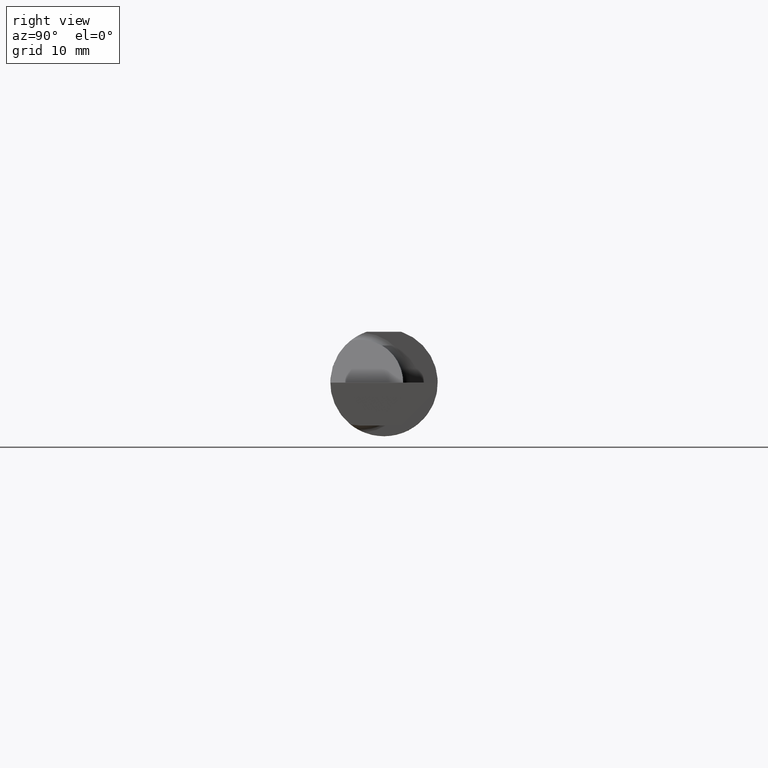
[diagram: clean part render]
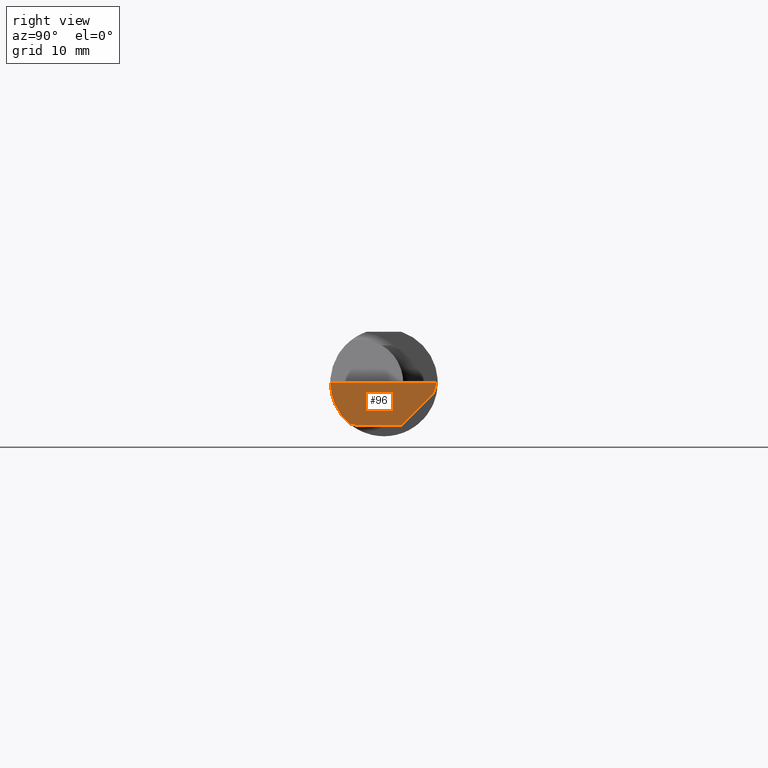
[diagram: same view with one face highlighted and labeled with its STEP entity id]
A machine part, right view. The second image highlights one B-rep face of the part: STEP entity #96.
In plain terms, the highlighted planar face has unit normal (-0.999, 0.0349, 0.0262).
Its self-contained STEP definition (entity closure, byte-faithful):
#8 = CARTESIAN_POINT ( 'NONE',  ( 2.486311922989707490, -0.09477667630339421667, -0.1499999999999999944 ) ) ;
#12 = CARTESIAN_POINT ( 'NONE',  ( 2.485628535317038867, -0.1172600179964007061, -0.1461167706989303094 ) ) ;
#13 = EDGE_CURVE ( 'NONE', #715, #169, #250, .T. ) ;
#18 = CARTESIAN_POINT ( 'NONE',  ( 2.500000000000000000, 0.1846500000000000363, 0.000000000000000000 ) ) ;
#40 = CARTESIAN_POINT ( 'NONE',  ( 2.491727426418679059, 0.06030305154314920951, -0.1499999999999999944 ) ) ;
#54 = EDGE_CURVE ( 'NONE', #397, #848, #803, .T. ) ;
#64 = VECTOR ( 'NONE', #626, 39.37007874015748854 ) ;
#65 = ORIENTED_EDGE ( 'NONE', *, *, #418, .T. ) ;
#74 = CARTESIAN_POINT ( 'NONE',  ( 2.498202922559297878, 0.1662457073591344092, -0.04405734418401514862 ) ) ;
#89 = CARTESIAN_POINT ( 'NONE',  ( 2.499745275690704371, 0.1824457755323927455, -0.006783905356193825967 ) ) ;
#96 = ADVANCED_FACE ( 'NONE', ( #338 ), #827, .F. ) ;
#127 = CARTESIAN_POINT ( 'NONE',  ( 2.486710951318955587, -0.08334999999999997966, -0.1499999999999999944 ) ) ;
#157 = LINE ( 'NONE', #89, #527 ) ;
#169 = VERTEX_POINT ( 'NONE', #609 ) ;
#174 = ORIENTED_EDGE ( 'NONE', *, *, #268, .F. ) ;
#232 = CARTESIAN_POINT ( 'NONE',  ( 2.485494735025390867, -0.1873500000000000443, -0.05781030015605120170 ) ) ;
#243 = CARTESIAN_POINT ( 'NONE',  ( 2.485002117657001186, -0.1623470442677541481, -0.1099340280425338545 ) ) ;
#250 =( BOUNDED_CURVE ( )  B_SPLINE_CURVE ( 3, ( #736, #243, #232, #1042 ),
 .UNSPECIFIED., .F., .F. ) 
 B_SPLINE_CURVE_WITH_KNOTS ( ( 4, 4 ),
 ( 6.032366188922103412, 6.926893589830550368 ),
 .UNSPECIFIED. ) 
 CURVE ( )  GEOMETRIC_REPRESENTATION_ITEM ( )  RATIONAL_B_SPLINE_CURVE ( ( 1.000000000000000000, 0.9344226172588803170, 0.9344226172588803170, 1.000000000000000000 ) ) 
 REPRESENTATION_ITEM ( '' )  );
#268 = EDGE_CURVE ( 'NONE', #848, #1003, #861, .T. ) ;
#311 = DIRECTION ( 'NONE',  ( -0.03489949670249478664, -0.9993908270190959842, 0.000000000000000000 ) ) ;
#325 = CARTESIAN_POINT ( 'NONE',  ( 2.485949549028435790, -0.1061291577212409298, -0.1486999626928446061 ) ) ;
#338 = FACE_OUTER_BOUND ( 'NONE', #460, .T. ) ;
#366 = CARTESIAN_POINT ( 'NONE',  ( 2.500000000000000000, 0.1846500000000000363, 0.000000000000000000 ) ) ;
#372 = CARTESIAN_POINT ( 'NONE',  ( 2.493549313964080305, 0.1124750847462631514, -0.1499999999999999944 ) ) ;
#375 = EDGE_CURVE ( 'NONE', #550, #397, #157, .T. ) ;
#379 =( BOUNDED_CURVE ( )  B_SPLINE_CURVE ( 3, ( #12, #325, #8, #645 ),
 .UNSPECIFIED., .F., .F. ) 
 B_SPLINE_CURVE_WITH_KNOTS ( ( 4, 4 ),
 ( 0.6990500090944880007, 0.9270880441439324215 ),
 .UNSPECIFIED. ) 
 CURVE ( )  GEOMETRIC_REPRESENTATION_ITEM ( )  RATIONAL_B_SPLINE_CURVE ( ( 1.000000000000000000, 0.9956712472009929815, 0.9956712472009929815, 1.000000000000000000 ) ) 
 REPRESENTATION_ITEM ( '' )  );
#392 = DIRECTION ( 'NONE',  ( -0.04317993108638582683, -0.7064472710512009757, -0.7064472710511987552 ) ) ;
#397 = VERTEX_POINT ( 'NONE', #981 ) ;
#418 = EDGE_CURVE ( 'NONE', #550, #169, #738, .T. ) ;
#447 = ORIENTED_EDGE ( 'NONE', *, *, #13, .F. ) ;
#460 = EDGE_LOOP ( 'NONE', ( #560, #174, #655, #766, #65, #447 ) ) ;
#496 = CARTESIAN_POINT ( 'NONE',  ( 2.485628535317038867, -0.1172600179964007061, -0.1461167706989303094 ) ) ;
#506 = DIRECTION ( 'NONE',  ( -0.03489949670249477970, -0.9993908270190959842, 0.000000000000000000 ) ) ;
#527 = VECTOR ( 'NONE', #807, 39.37007874015748143 ) ;
#550 = VERTEX_POINT ( 'NONE', #366 ) ;
#560 = ORIENTED_EDGE ( 'NONE', *, *, #739, .T. ) ;
#577 = CARTESIAN_POINT ( 'NONE',  ( 2.500000000000000000, 0.1846500000000000363, 0.000000000000000000 ) ) ;
#607 = VECTOR ( 'NONE', #392, 39.37007874015748143 ) ;
#609 = CARTESIAN_POINT ( 'NONE',  ( 2.487009473749072441, -0.1873499999999999055, 0.000000000000000000 ) ) ;
#626 = DIRECTION ( 'NONE',  ( -0.03489949670249477970, -0.9993908270190959842, 0.000000000000000000 ) ) ;
#645 = CARTESIAN_POINT ( 'NONE',  ( 2.486710951318955587, -0.08334999999999997966, -0.1499999999999999944 ) ) ;
#655 = ORIENTED_EDGE ( 'NONE', *, *, #54, .F. ) ;
#715 = VERTEX_POINT ( 'NONE', #496 ) ;
#736 = CARTESIAN_POINT ( 'NONE',  ( 2.485628535317038867, -0.1172600179964007061, -0.1461167706989303094 ) ) ;
#738 = LINE ( 'NONE', #577, #773 ) ;
#739 = EDGE_CURVE ( 'NONE', #715, #1003, #379, .T. ) ;
#759 = DIRECTION ( 'NONE',  ( -0.9990483607430193924, 0.03488753751660920999, 0.02617694830787320806 ) ) ;
#766 = ORIENTED_EDGE ( 'NONE', *, *, #375, .F. ) ;
#773 = VECTOR ( 'NONE', #311, 39.37007874015748854 ) ;
#803 = LINE ( 'NONE', #74, #607 ) ;
#807 = DIRECTION ( 'NONE',  ( -0.03568783471266506746, -0.3088201463263676727, -0.9504506802967118695 ) ) ;
#827 = PLANE ( 'NONE',  #1030 ) ;
#848 = VERTEX_POINT ( 'NONE', #40 ) ;
#861 = LINE ( 'NONE', #372, #64 ) ;
#981 = CARTESIAN_POINT ( 'NONE',  ( 2.498573163503173156, 0.1723030515431495657, -0.03799999999999999212 ) ) ;
#1003 = VERTEX_POINT ( 'NONE', #127 ) ;
#1030 = AXIS2_PLACEMENT_3D ( 'NONE', #18, #759, #506 ) ;
#1042 = CARTESIAN_POINT ( 'NONE',  ( 2.487009473749072441, -0.1873499999999999055, 0.000000000000000000 ) ) ;